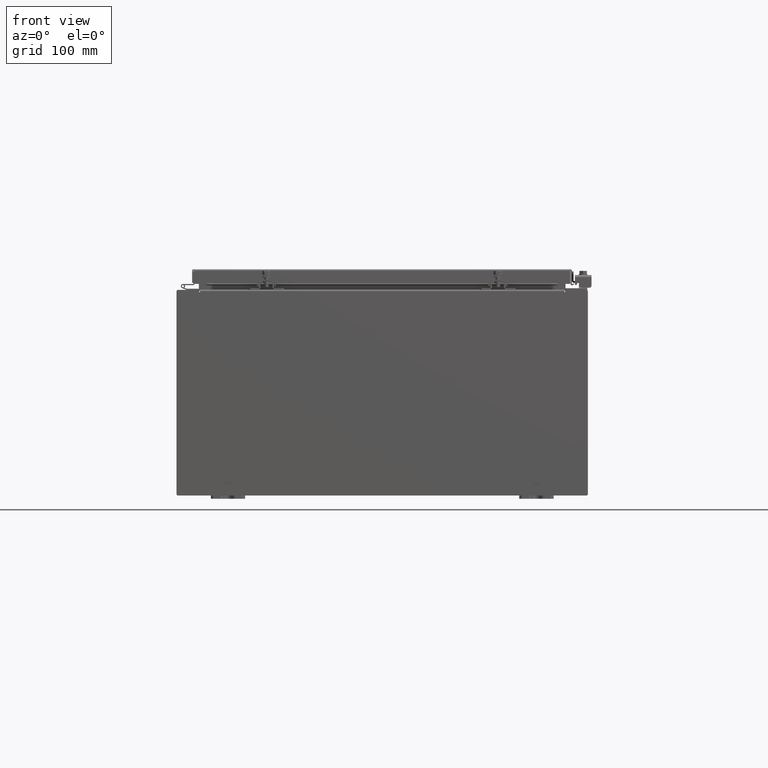
[diagram: clean part render]
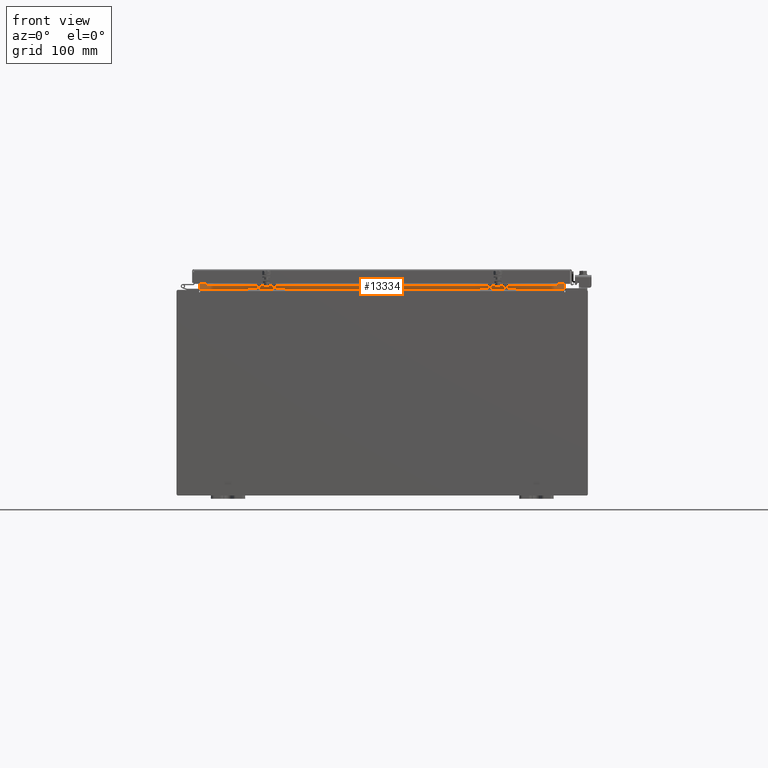
[diagram: same view with one face highlighted and labeled with its STEP entity id]
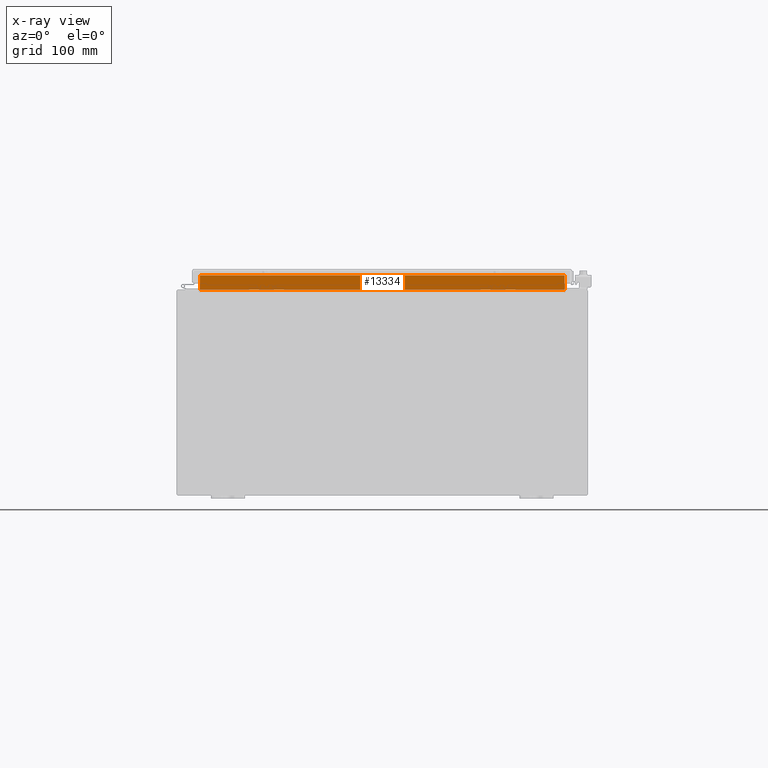
[diagram: x-ray of the same camera — body ghosted, the highlighted face saturated]
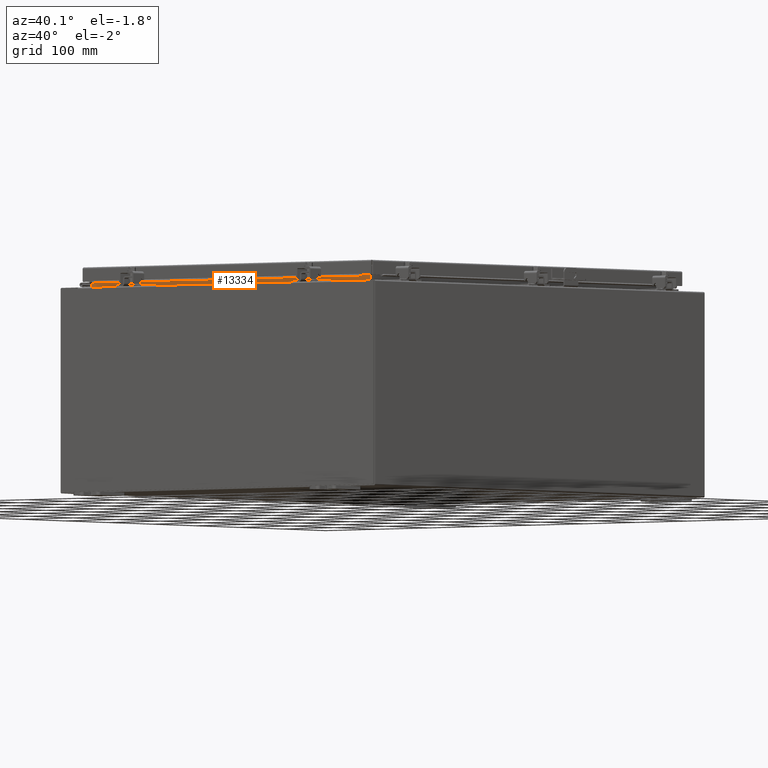
[diagram: same view with one face highlighted and labeled with its STEP entity id]
A machine part, front view. The second image highlights one B-rep face of the part: STEP entity #13334.
The next image is the same camera in x-ray: the body ghosted, the highlighted face saturated — about 0% of this face is hidden behind the body in this view.
A second angle (auxiliary view) of the same face is appended — the face is thin or edge-on in the first view.
In plain terms, the highlighted planar face has unit normal (-0, -1, 0).
Its self-contained STEP definition (entity closure, byte-faithful):
#24 = CARTESIAN_POINT ( 'NONE',  ( 10.63720000000001200, -1.300300000000001300, 6.837600000000009900 ) ) ;
#532 = CARTESIAN_POINT ( 'NONE',  ( -10.63719999999997700, -1.300300000000001300, 6.837600000000003700 ) ) ;
#1710 = ORIENTED_EDGE ( 'NONE', *, *, #35613, .F. ) ;
#2400 = DIRECTION ( 'NONE',  ( -1.000000000000000000, -2.688223102148528000E-016, -8.326672684688675000E-016 ) ) ;
#2632 = CARTESIAN_POINT ( 'NONE',  ( -10.63720000000000200, -1.300300000000001300, 6.000000000000002700 ) ) ;
#3826 = VERTEX_POINT ( 'NONE', #532 ) ;
#4624 = PLANE ( 'NONE',  #5373 ) ;
#5373 = AXIS2_PLACEMENT_3D ( 'NONE', #25077, #28001, #10579 ) ;
#6089 = LINE ( 'NONE', #2632, #20718 ) ;
#6303 = VERTEX_POINT ( 'NONE', #7675 ) ;
#6800 = VECTOR ( 'NONE', #22688, 39.37007874015748100 ) ;
#7071 = VERTEX_POINT ( 'NONE', #24 ) ;
#7675 = CARTESIAN_POINT ( 'NONE',  ( 10.63720000000000400, -1.300300000000001300, 6.013000000000007000 ) ) ;
#7786 = ORIENTED_EDGE ( 'NONE', *, *, #9121, .F. ) ;
#7824 = CARTESIAN_POINT ( 'NONE',  ( 10.63720000000001200, -1.300300000000001300, 6.925300000000010700 ) ) ;
#8296 = VECTOR ( 'NONE', #2400, 39.37007874015748100 ) ;
#9121 = EDGE_CURVE ( 'NONE', #7071, #3826, #16067, .T. ) ;
#10579 = DIRECTION ( 'NONE',  ( 8.326672684688674100E-016, -1.053476671754865200E-015, 1.000000000000000000 ) ) ;
#12220 = VECTOR ( 'NONE', #31323, 39.37007874015748100 ) ;
#12730 = FACE_OUTER_BOUND ( 'NONE', #29285, .T. ) ;
#13334 = ADVANCED_FACE ( 'NONE', ( #12730 ), #4624, .T. ) ;
#14023 = EDGE_CURVE ( 'NONE', #6303, #7071, #35531, .T. ) ;
#15521 = ORIENTED_EDGE ( 'NONE', *, *, #14023, .F. ) ;
#16067 = LINE ( 'NONE', #19970, #8296 ) ;
#17396 = EDGE_CURVE ( 'NONE', #3826, #36603, #6089, .T. ) ;
#19970 = CARTESIAN_POINT ( 'NONE',  ( 10.63720000000000700, -1.300300000000001300, 6.837600000000009900 ) ) ;
#20718 = VECTOR ( 'NONE', #37837, 39.37007874015748100 ) ;
#22688 = DIRECTION ( 'NONE',  ( 1.000000000000000000, 3.715503963151145200E-016, 9.353953545691291300E-016 ) ) ;
#23498 = ORIENTED_EDGE ( 'NONE', *, *, #17396, .F. ) ;
#25077 = CARTESIAN_POINT ( 'NONE',  ( -3.495496509759975400E-016, -1.300299999999994900, -1.092739197465705300E-015 ) ) ;
#28001 = DIRECTION ( 'NONE',  ( 2.688223102148536400E-016, 1.000000000000000000, 1.053476671754865000E-015 ) ) ;
#29192 = LINE ( 'NONE', #37419, #6800 ) ;
#29285 = EDGE_LOOP ( 'NONE', ( #23498, #7786, #15521, #1710 ) ) ;
#31323 = DIRECTION ( 'NONE',  ( 8.326672684688674100E-016, -1.053476671754865200E-015, 1.000000000000000000 ) ) ;
#35531 = LINE ( 'NONE', #7824, #12220 ) ;
#35613 = EDGE_CURVE ( 'NONE', #36603, #6303, #29192, .T. ) ;
#36603 = VERTEX_POINT ( 'NONE', #37226 ) ;
#37226 = CARTESIAN_POINT ( 'NONE',  ( -10.63720000000000400, -1.300300000000001300, 6.013000000000005200 ) ) ;
#37419 = CARTESIAN_POINT ( 'NONE',  ( -10.63720000000000200, -1.300300000000001300, 6.013000000000000800 ) ) ;
#37837 = DIRECTION ( 'NONE',  ( -8.326672684688674100E-016, 1.053476671754864400E-015, -1.000000000000000000 ) ) ;